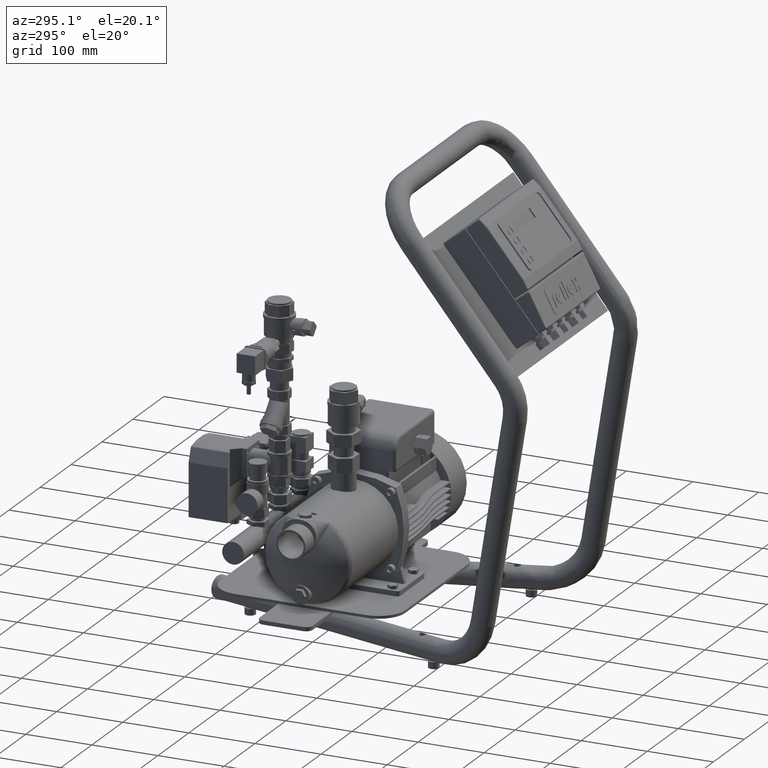
[diagram: clean part render]
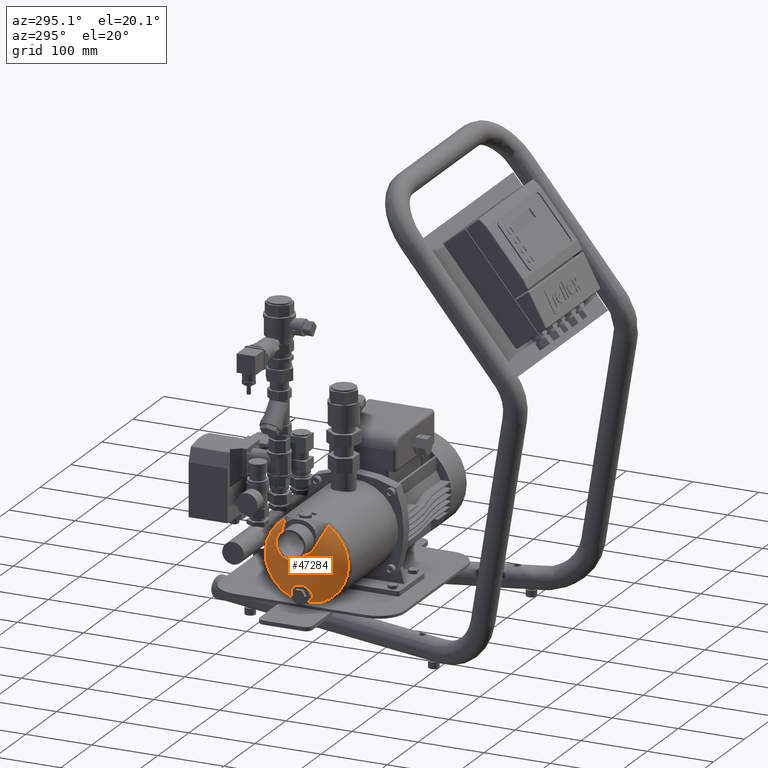
[diagram: same view with one face highlighted and labeled with its STEP entity id]
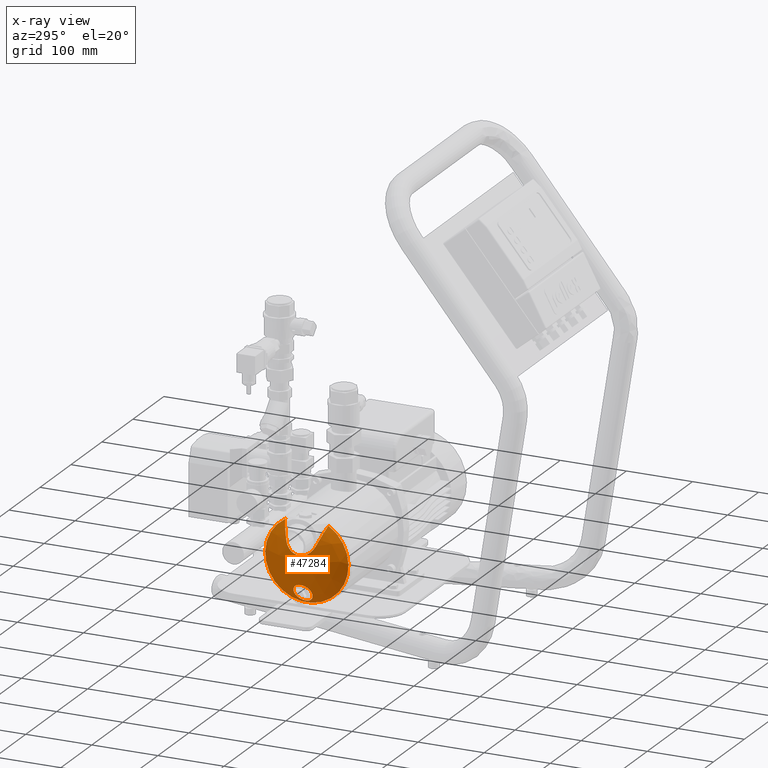
[diagram: x-ray of the same camera — body ghosted, the highlighted face saturated]
A machine part, auxiliary view. The second image highlights one B-rep face of the part: STEP entity #47284.
The next image is the same camera in x-ray: the body ghosted, the highlighted face saturated — about 0% of this face is hidden behind the body in this view.
In plain terms, the highlighted spherical surface has radius 90 mm.
Its self-contained STEP definition (entity closure, byte-faithful):
#45754=CARTESIAN_POINT('',(-192.963225350184810,-33.000000000000007,81.499999999999986));
#45755=VERTEX_POINT('',#45754);
#45764=CARTESIAN_POINT('',(-209.492603226554760,-33.000000000000007,109.499999999999990));
#45765=VERTEX_POINT('',#45764);
#45766=CARTESIAN_POINT('',(-209.492603226554760,-33.000000000000007,109.499999999999990));
#45767=CARTESIAN_POINT('',(-209.492603226554760,-33.871926520615837,109.499999999999990));
#45768=CARTESIAN_POINT('',(-209.448516245344250,-34.769546676338358,109.417150039025530));
#45769=CARTESIAN_POINT('',(-209.265294536259350,-36.545911759659496,109.073683007922640));
#45770=CARTESIAN_POINT('',(-209.126196758121520,-37.424677353474927,108.813153116759080));
#45771=CARTESIAN_POINT('',(-208.579497078627300,-39.938682106880414,107.793327546430700));
#45772=CARTESIAN_POINT('',(-208.034749177625660,-41.448551359700993,106.782149647987340));
#45773=CARTESIAN_POINT('',(-206.705705643621570,-44.015671926919488,104.347888955341050));
#45774=CARTESIAN_POINT('',(-205.796456585392720,-45.159368630730675,102.700747960338790));
#45775=CARTESIAN_POINT('',(-203.796347537149760,-46.650966937947523,99.154047193529792));
#45776=CARTESIAN_POINT('',(-202.704833794178460,-47.000000000000021,97.255332112176944));
#45777=CARTESIAN_POINT('',(-200.621581986671490,-47.000000000000021,93.705719297153266));
#45778=CARTESIAN_POINT('',(-199.472032544028510,-46.636533619863378,91.787719761146334));
#45779=CARTESIAN_POINT('',(-197.291317947263710,-45.120505948959682,88.231619391242063));
#45780=CARTESIAN_POINT('',(-196.260616559671230,-43.968205137300622,86.593123144952159));
#45781=CARTESIAN_POINT('',(-194.726297199352420,-41.408162742432062,84.191834371485697));
#45782=CARTESIAN_POINT('',(-194.078645691601420,-39.916713789261642,83.196270194812385));
#45783=CARTESIAN_POINT('',(-193.416268967926040,-37.420656268437277,82.185967759736513));
#45784=CARTESIAN_POINT('',(-193.245124687113640,-36.546117101618670,81.926491221567602));
#45785=CARTESIAN_POINT('',(-193.018553239020210,-34.773358597606610,81.583452789305099));
#45786=CARTESIAN_POINT('',(-192.963225350184810,-33.875105462763308,81.499999999999986));
#45787=CARTESIAN_POINT('',(-192.963225350184810,-33.000000000000007,81.499999999999986));
#45788=B_SPLINE_CURVE_WITH_KNOTS('',3,(#45766,#45767,#45768,#45769,#45770,#45771,#45772,#45773,#45774,#45775,#45776,#45777,#45778,#45779,#45780,#45781,#45782,#45783,#45784,#45785,#45786,#45787),.UNSPECIFIED.,.F.,.U.,(4,2,2,2,2,2,2,2,2,2,4),(4.565909603378281,4.827487559563028,5.089065515747777,5.612221428117272,6.222815084987350,6.833408741857428,7.457550696649022,8.081692651440616,8.606755929098590,8.869287567927577,9.131819206756564),.UNSPECIFIED.);
#45789=EDGE_CURVE('',#45765,#45755,#45788,.T.);
#46200=CARTESIAN_POINT('',(-192.963225350184810,-33.000000000000007,81.499999999999986));
#46201=CARTESIAN_POINT('',(-192.963225350184810,-32.124894537236727,81.499999999999986));
#46202=CARTESIAN_POINT('',(-193.018553239020210,-31.226641402393394,81.583452789305099));
#46203=CARTESIAN_POINT('',(-193.245124687113640,-29.453882898381348,81.926491221567602));
#46204=CARTESIAN_POINT('',(-193.416268967926040,-28.579343731562723,82.185967759736513));
#46205=CARTESIAN_POINT('',(-194.078645691601420,-26.083286210738372,83.196270194812385));
#46206=CARTESIAN_POINT('',(-194.726297199352420,-24.591837257567967,84.191834371485697));
#46207=CARTESIAN_POINT('',(-196.260616559671230,-22.031794862699407,86.593123144952159));
#46208=CARTESIAN_POINT('',(-197.291317947263710,-20.879494051040332,88.231619391242077));
#46209=CARTESIAN_POINT('',(-199.472032544028510,-19.363466380136636,91.787719761146334));
#46210=CARTESIAN_POINT('',(-200.621581986671490,-19.000000000000007,93.705719297153266));
#46211=CARTESIAN_POINT('',(-202.704833794178460,-19.000000000000007,97.255332112176944));
#46212=CARTESIAN_POINT('',(-203.796347537149700,-19.349033062052520,99.154047193529792));
#46213=CARTESIAN_POINT('',(-205.796456585392660,-20.840631369269325,102.700747960338790));
#46214=CARTESIAN_POINT('',(-206.705705643621570,-21.984328073080555,104.347888955341050));
#46215=CARTESIAN_POINT('',(-208.034749177625570,-24.551448640299022,106.782149647987340));
#46216=CARTESIAN_POINT('',(-208.579497078627300,-26.061317893119600,107.793327546430670));
#46217=CARTESIAN_POINT('',(-209.126196758121490,-28.575322646525073,108.813153116759050));
#46218=CARTESIAN_POINT('',(-209.265294536259350,-29.454088240340504,109.073683007922640));
#46219=CARTESIAN_POINT('',(-209.448516245344250,-31.230453323661642,109.417150039025560));
#46220=CARTESIAN_POINT('',(-209.492603226554760,-32.128073479384177,109.499999999999990));
#46221=CARTESIAN_POINT('',(-209.492603226554760,-33.000000000000007,109.499999999999990));
#46222=B_SPLINE_CURVE_WITH_KNOTS('',3,(#46200,#46201,#46202,#46203,#46204,#46205,#46206,#46207,#46208,#46209,#46210,#46211,#46212,#46213,#46214,#46215,#46216,#46217,#46218,#46219,#46220,#46221),.UNSPECIFIED.,.F.,.U.,(4,2,2,2,2,2,2,2,2,2,4),(0.0,0.262531638828987,0.525063277657974,1.050126555315948,1.674268510107541,2.298410464899135,2.909004121769212,3.519597778639290,4.042753691008786,4.304331647193534,4.565909603378281),.UNSPECIFIED.);
#46223=EDGE_CURVE('',#45755,#45765,#46222,.T.);
#46707=CARTESIAN_POINT('',(-190.247299835021350,-65.348333729270664,193.380763695310210));
#46708=VERTEX_POINT('',#46707);
#46737=CARTESIAN_POINT('',(-189.272855857109730,-65.725367956783174,194.333542443948120));
#46738=VERTEX_POINT('',#46737);
#46739=CARTESIAN_POINT('',(-189.272855857109730,-65.725367956783174,194.333542443948120));
#46740=CARTESIAN_POINT('',(-189.568360867777530,-65.618471959691917,194.045715572180650));
#46741=CARTESIAN_POINT('',(-189.892407937130660,-65.493044619315867,193.730126688849590));
#46742=CARTESIAN_POINT('',(-190.247299835021350,-65.348333729270664,193.380763695310210));
#46743=B_SPLINE_CURVE_WITH_KNOTS('',3,(#46739,#46740,#46741,#46742),.UNSPECIFIED.,.F.,.U.,(4,4),(0.400882382251563,0.457418448142195),.UNSPECIFIED.);
#46744=EDGE_CURVE('',#46738,#46708,#46743,.T.);
#46812=CARTESIAN_POINT('',(-207.502001056078460,-55.173108780270901,168.815597623237890));
#46813=VERTEX_POINT('',#46812);
#46820=CARTESIAN_POINT('',(-125.000000000000070,-41.914856633023128,136.807345475990100));
#46821=DIRECTION('',(8.671417E-017,-0.923879532511287,-0.382683432365090));
#46822=DIRECTION('',(3.591818E-017,-0.382683432365090,0.923879532511287));
#46823=AXIS2_PLACEMENT_3D('',#46820,#46821,#46822);
#46824=CIRCLE('',#46823,89.481225035081806);
#46825=EDGE_CURVE('',#46708,#46813,#46824,.T.);
#46988=CARTESIAN_POINT('',(-189.272855884609750,-0.274632053164691,194.333542417162590));
#46989=VERTEX_POINT('',#46988);
#47005=CARTESIAN_POINT('',(-190.247299835021550,-0.651666270729390,193.380763695310010));
#47006=VERTEX_POINT('',#47005);
#47007=CARTESIAN_POINT('',(-190.247299835021550,-0.651666270729390,193.380763695310010));
#47008=CARTESIAN_POINT('',(-189.934945988164290,-0.524300716721466,193.688251343324030));
#47009=CARTESIAN_POINT('',(-189.602936690602690,-0.394035500672157,194.012038136723730));
#47010=CARTESIAN_POINT('',(-189.272855884609750,-0.274632053164691,194.333542417162590));
#47011=B_SPLINE_CURVE_WITH_KNOTS('',3,(#47007,#47008,#47009,#47010),.UNSPECIFIED.,.F.,.U.,(4,4),(0.0,0.136931372339552),.UNSPECIFIED.);
#47012=EDGE_CURVE('',#46989,#47006,#47011,.F.);
#47051=CARTESIAN_POINT('',(-207.502001056078460,-10.826891219729113,168.815597623237890));
#47052=VERTEX_POINT('',#47051);
#47053=CARTESIAN_POINT('',(-125.000000000000070,-24.085143366976858,136.807345475990080));
#47054=DIRECTION('',(-8.671417E-017,0.923879532511287,-0.382683432365090));
#47055=DIRECTION('',(3.591818E-017,-0.382683432365090,-0.923879532511287));
#47056=AXIS2_PLACEMENT_3D('',#47053,#47054,#47055);
#47057=CIRCLE('',#47056,89.481225035081806);
#47058=EDGE_CURVE('',#47052,#47006,#47057,.T.);
#47075=CARTESIAN_POINT('',(-207.502001056078460,-55.173108780270901,168.815597623237890));
#47076=CARTESIAN_POINT('',(-207.554820128695520,-55.124975185102095,168.699392844975560));
#47077=CARTESIAN_POINT('',(-207.607309873290570,-55.076025128863115,168.583801003674100));
#47078=CARTESIAN_POINT('',(-208.253089645689900,-54.460068644186897,167.160339453204220));
#47079=CARTESIAN_POINT('',(-208.843682478296020,-53.749790344795521,165.844025252476650));
#47080=CARTESIAN_POINT('',(-209.966153412305350,-52.045938537910466,163.317570124778770));
#47081=CARTESIAN_POINT('',(-210.498098913138510,-51.052384263862201,162.107446171892060));
#47082=CARTESIAN_POINT('',(-211.464193369928980,-48.829563950615615,159.892354046455180));
#47083=CARTESIAN_POINT('',(-211.899131309373390,-47.598531356625251,158.885745422116910));
#47084=CARTESIAN_POINT('',(-212.647272490440740,-44.980168818550034,157.144607381565040));
#47085=CARTESIAN_POINT('',(-212.960465927184570,-43.592728886440149,156.410239160287320));
#47086=CARTESIAN_POINT('',(-213.448543966930540,-40.821043410660629,155.262169445586920));
#47087=CARTESIAN_POINT('',(-213.642581221048740,-39.351787545644676,154.803470526190670));
#47088=CARTESIAN_POINT('',(-213.907117937052760,-36.301450603341785,154.177224999594240));
#47089=CARTESIAN_POINT('',(-213.977687287638640,-34.720388450549855,154.009615740182620));
#47090=CARTESIAN_POINT('',(-213.985448809651330,-31.559256331060162,153.991198862603450));
#47091=CARTESIAN_POINT('',(-213.922648999166820,-29.976081838825131,154.140374211730350));
#47092=CARTESIAN_POINT('',(-213.673081528185800,-26.917641166393885,154.731335777976260));
#47093=CARTESIAN_POINT('',(-213.486244438060420,-25.442393247969456,155.173187181767450));
#47094=CARTESIAN_POINT('',(-213.002679518169430,-22.602871945110770,156.311212813433000));
#47095=CARTESIAN_POINT('',(-212.682963462460040,-21.158523674461158,157.061278618567200));
#47096=CARTESIAN_POINT('',(-211.913604888888330,-18.439210569193229,158.852310180986140));
#47097=CARTESIAN_POINT('',(-211.463972392633680,-17.164126810109032,159.893099674500120));
#47098=CARTESIAN_POINT('',(-210.461872938809790,-14.870281797409042,162.190258372617310));
#47099=CARTESIAN_POINT('',(-209.908533526584850,-13.849596681993070,163.448440315989560));
#47100=CARTESIAN_POINT('',(-208.738765035388980,-12.110499138837930,166.078817602334000));
#47101=CARTESIAN_POINT('',(-208.122256383069270,-11.392124900129041,167.451002806106320));
#47102=CARTESIAN_POINT('',(-207.502001056078460,-10.826891219729113,168.815597623237890));
#47103=B_SPLINE_CURVE_WITH_KNOTS('',3,(#47075,#47076,#47077,#47078,#47079,#47080,#47081,#47082,#47083,#47084,#47085,#47086,#47087,#47088,#47089,#47090,#47091,#47092,#47093,#47094,#47095,#47096,#47097,#47098,#47099,#47100,#47101,#47102),.UNSPECIFIED.,.F.,.U.,(4,2,2,2,2,2,2,2,2,2,2,2,2,4),(1.989045835178381,2.029749551711089,2.493070539137300,2.956391526563510,3.419712513989721,3.883033501415932,4.331560755607126,4.780088009798321,5.228615263989515,5.677142518180710,6.157735102305260,6.638327686429809,7.118920270554359,7.599512854678909),.UNSPECIFIED.);
#47104=EDGE_CURVE('',#46813,#47052,#47103,.T.);
#47126=CARTESIAN_POINT('',(-189.272855856885680,-33.0,140.500000000000030));
#47127=DIRECTION('',(1.0,0.0,0.0));
#47128=DIRECTION('',(0.0,0.0,-1.0));
#47129=AXIS2_PLACEMENT_3D('',#47126,#47127,#47128);
#47130=CIRCLE('',#47129,63.000000000000007);
#47131=EDGE_CURVE('',#46989,#46738,#47130,.F.);
#47267=CARTESIAN_POINT('',(-125.000000000000070,-32.999999999999993,140.500000000000030));
#47268=DIRECTION('',(0.0,0.0,1.0));
#47269=DIRECTION('',(1.0,0.0,0.0));
#47270=AXIS2_PLACEMENT_3D('',#47267,#47268,#47269);
#47271=SPHERICAL_SURFACE('',#47270,90.0);
#47272=ORIENTED_EDGE('',*,*,#46223,.T.);
#47273=ORIENTED_EDGE('',*,*,#45789,.T.);
#47274=EDGE_LOOP('',(#47272,#47273));
#47275=FACE_OUTER_BOUND('',#47274,.T.);
#47276=ORIENTED_EDGE('',*,*,#47058,.T.);
#47277=ORIENTED_EDGE('',*,*,#47012,.F.);
#47278=ORIENTED_EDGE('',*,*,#47131,.T.);
#47279=ORIENTED_EDGE('',*,*,#46744,.T.);
#47280=ORIENTED_EDGE('',*,*,#46825,.T.);
#47281=ORIENTED_EDGE('',*,*,#47104,.T.);
#47282=EDGE_LOOP('',(#47276,#47277,#47278,#47279,#47280,#47281));
#47283=FACE_BOUND('',#47282,.T.);
#47284=ADVANCED_FACE('',(#47275,#47283),#47271,.T.);